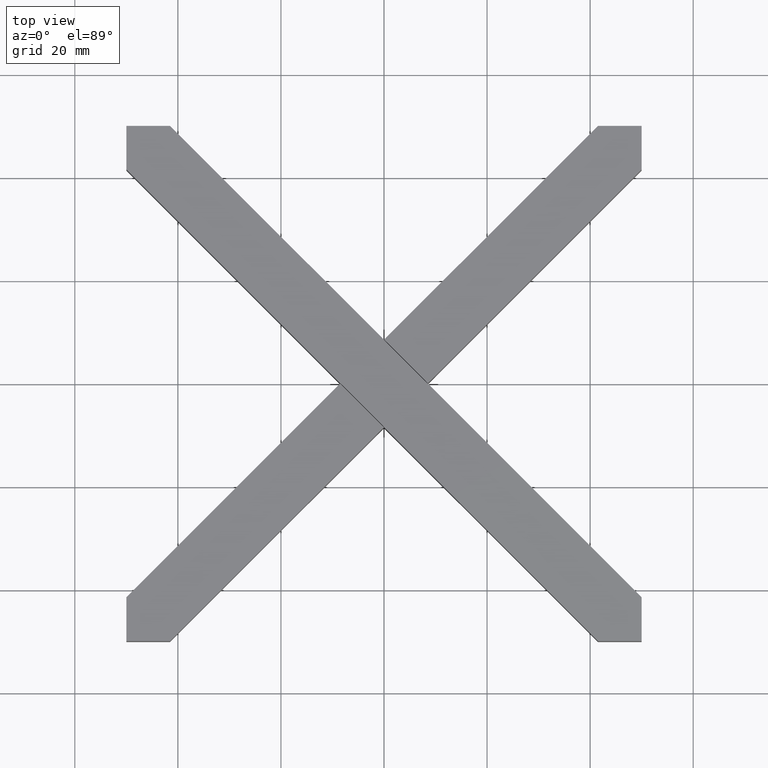
[diagram: clean part render]
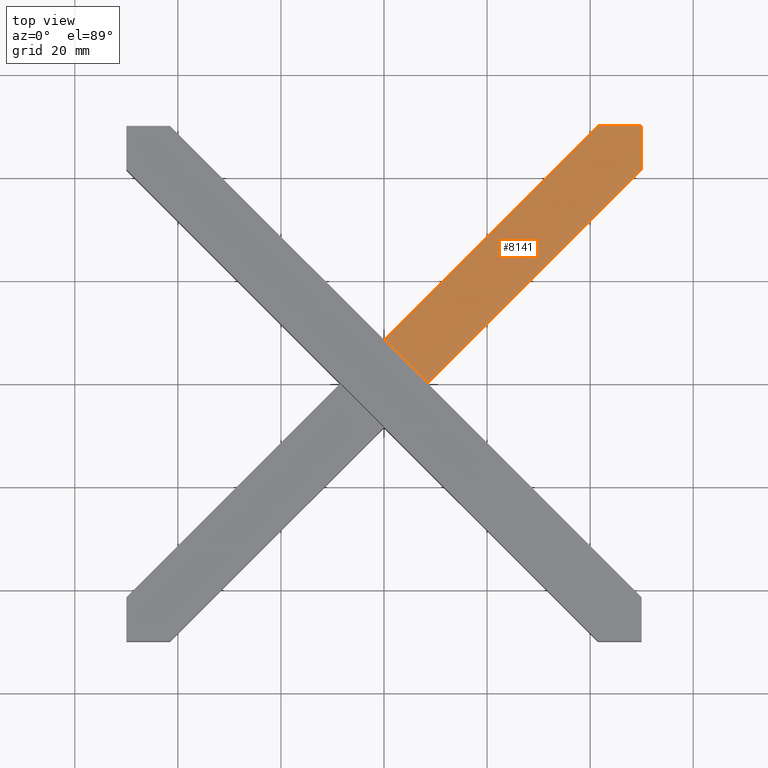
[diagram: same view with one face highlighted and labeled with its STEP entity id]
A machine part, top view. The second image highlights one B-rep face of the part: STEP entity #8141.
In plain terms, the highlighted planar face has unit normal (-0, 0, 1).
Its self-contained STEP definition (entity closure, byte-faithful):
#123 = LINE ( 'NONE', #7927, #14041 ) ;
#478 = CARTESIAN_POINT ( 'NONE',  ( 50.00000000000000000, 41.51471862576145355, 12.00000000000000000 ) ) ;
#525 = VERTEX_POINT ( 'NONE', #2630 ) ;
#1020 = LINE ( 'NONE', #6610, #12342 ) ;
#1525 = ORIENTED_EDGE ( 'NONE', *, *, #10805, .T. ) ;
#1794 = CARTESIAN_POINT ( 'NONE',  ( 8.520636713297895071, 0.03535533905932197740, 12.00000000000000000 ) ) ;
#1900 = DIRECTION ( 'NONE',  ( 1.000000000000000000, 0.000000000000000000, 0.000000000000000000 ) ) ;
#2568 = PLANE ( 'NONE',  #9966 ) ;
#2630 = CARTESIAN_POINT ( 'NONE',  ( 41.51471862576141092, 50.00000000000000000, 12.00000000000000000 ) ) ;
#3285 = ORIENTED_EDGE ( 'NONE', *, *, #10382, .T. ) ;
#3660 = CARTESIAN_POINT ( 'NONE',  ( 0.000000000000000000, 0.000000000000000000, 12.00000000000000000 ) ) ;
#4047 = FACE_OUTER_BOUND ( 'NONE', #11559, .T. ) ;
#4203 = LINE ( 'NONE', #9727, #6970 ) ;
#4481 = DIRECTION ( 'NONE',  ( 0.7071067811865473507, 0.7071067811865477948, 0.000000000000000000 ) ) ;
#5283 = VECTOR ( 'NONE', #12989, 1000.000000000000000 ) ;
#5303 = CARTESIAN_POINT ( 'NONE',  ( 8.520636713297887965, 0.03535533905932997795, 12.00000000000000000 ) ) ;
#5815 = EDGE_CURVE ( 'NONE', #7251, #12693, #123, .T. ) ;
#6120 = EDGE_CURVE ( 'NONE', #13830, #7435, #10954, .T. ) ;
#6257 = EDGE_CURVE ( 'NONE', #13830, #7251, #1020, .T. ) ;
#6610 = CARTESIAN_POINT ( 'NONE',  ( 8.485281374238560659, -1.084202172485504434E-14, 12.00000000000000000 ) ) ;
#6970 = VECTOR ( 'NONE', #7584, 999.9999999999998863 ) ;
#7112 = ORIENTED_EDGE ( 'NONE', *, *, #5815, .T. ) ;
#7251 = VERTEX_POINT ( 'NONE', #478 ) ;
#7435 = VERTEX_POINT ( 'NONE', #8538 ) ;
#7542 = ORIENTED_EDGE ( 'NONE', *, *, #6120, .F. ) ;
#7584 = DIRECTION ( 'NONE',  ( -0.7071067811865473507, -0.7071067811865477948, -0.000000000000000000 ) ) ;
#7638 = ORIENTED_EDGE ( 'NONE', *, *, #6257, .T. ) ;
#7927 = CARTESIAN_POINT ( 'NONE',  ( 50.00000000000000000, 50.00000000000000000, 12.00000000000000000 ) ) ;
#8141 = ADVANCED_FACE ( 'NONE', ( #4047 ), #2568, .T. ) ;
#8538 = CARTESIAN_POINT ( 'NONE',  ( 0.03535533905932217169, 8.520636713297895071, 12.00000000000000000 ) ) ;
#9338 = VECTOR ( 'NONE', #10807, 1000.000000000000000 ) ;
#9727 = CARTESIAN_POINT ( 'NONE',  ( -5.509374826798535559E-15, 8.485281374238564212, 12.00000000000000000 ) ) ;
#9966 = AXIS2_PLACEMENT_3D ( 'NONE', #3660, #13538, #1900 ) ;
#10382 = EDGE_CURVE ( 'NONE', #525, #7435, #4203, .T. ) ;
#10805 = EDGE_CURVE ( 'NONE', #12693, #525, #13304, .T. ) ;
#10807 = DIRECTION ( 'NONE',  ( -1.000000000000000000, -0.000000000000000000, -0.000000000000000000 ) ) ;
#10901 = CARTESIAN_POINT ( 'NONE',  ( 41.51471862576141092, 50.00000000000000000, 12.00000000000000000 ) ) ;
#10954 = LINE ( 'NONE', #5303, #5283 ) ;
#11076 = CARTESIAN_POINT ( 'NONE',  ( 50.00000000000000000, 50.00000000000000000, 12.00000000000000000 ) ) ;
#11177 = DIRECTION ( 'NONE',  ( -0.000000000000000000, 1.000000000000000000, -0.000000000000000000 ) ) ;
#11559 = EDGE_LOOP ( 'NONE', ( #7542, #7638, #7112, #1525, #3285 ) ) ;
#12342 = VECTOR ( 'NONE', #4481, 1000.000000000000000 ) ;
#12693 = VERTEX_POINT ( 'NONE', #11076 ) ;
#12989 = DIRECTION ( 'NONE',  ( -0.7071067811865476838, 0.7071067811865474617, 0.000000000000000000 ) ) ;
#13304 = LINE ( 'NONE', #10901, #9338 ) ;
#13538 = DIRECTION ( 'NONE',  ( -0.000000000000000000, 0.000000000000000000, 1.000000000000000000 ) ) ;
#13830 = VERTEX_POINT ( 'NONE', #1794 ) ;
#14041 = VECTOR ( 'NONE', #11177, 1000.000000000000000 ) ;